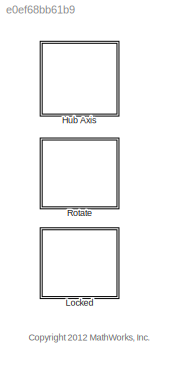
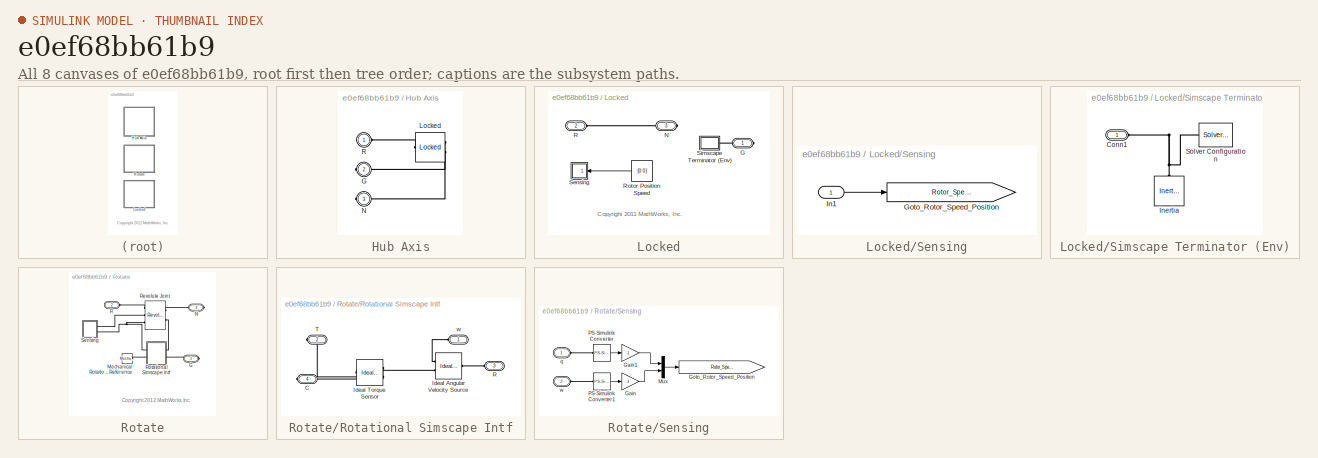
[diagram: thumbnail index - all 8 canvases of the model, root first then tree order]
MODEL slx_e0ef68bb61b9
KIND library
BLOCK [SubSystem] Hub Axis
  BlockChoice = Locked
  FunctionWithSeparateData = off
  MaskHideContents = off
  MemberBlocks = Locked,Rotate
  MinAlgLoopOccurrences = off
  Opaque = off
  Ports = [0, 0, 0, 0, 0, 1, 2]
  PropExecContextOutsideSubsystem = off
  RTWSystemCode = Auto
  RequestExecContextInheritance = off
  TemplateBlock = self
BLOCK [PMIOPort] Hub Axis/G
  Port = 2
  Side = Right
BLOCK [Reference] Hub Axis/Locked  REF=Hub_Axis_Lib/Locked
  FunctionWithSeparateData = off
  GeneratePreprocessorConditionals = off
  Ports = [0, 0, 0, 0, 0, 1, 2]
  ShowPortLabels = FromPortIcon
  SourceBlock = Hub_Axis_Lib/Locked
  SystemSampleTime = -1
BLOCK [PMIOPort] Hub Axis/N
  Port = 3
  Side = Right
BLOCK [PMIOPort] Hub Axis/R
  Port = 1
  Side = Left
BLOCK [SubSystem] Locked
  FunctionWithSeparateData = off
  MaskHideContents = off
  MinAlgLoopOccurrences = off
  Opaque = off
  Ports = [0, 0, 0, 0, 0, 1, 2]
  PropExecContextOutsideSubsystem = off
  RTWSystemCode = Auto
  RequestExecContextInheritance = off
BLOCK [PMIOPort] Locked/G
  Port = 1
  Side = Right
BLOCK [PMIOPort] Locked/N
  Port = 3
  Side = Right
BLOCK [PMIOPort] Locked/R
  Port = 2
  Side = Left
BLOCK [Constant] Locked/Rotor Position Speed
  Value = [0 0]
BLOCK [SubSystem] Locked/Sensing
  FunctionWithSeparateData = off
  MaskHideContents = off
  MinAlgLoopOccurrences = off
  Opaque = off
  Ports = [1]
  PropExecContextOutsideSubsystem = off
  RTWSystemCode = Auto
  RequestExecContextInheritance = off
BLOCK [Goto] Locked/Sensing/Goto_Rotor_Speed_Position
  GotoTag = Rotor_Speed_Position
  TagVisibility = global
BLOCK [Inport] Locked/Sensing/In1
  IconDisplay = Port number
BLOCK [SubSystem] Locked/Simscape Terminator (Env)
  FunctionWithSeparateData = off
  MaskHideContents = off
  MinAlgLoopOccurrences = off
  Opaque = off
  Ports = [0, 0, 0, 0, 0, 1]
  PropExecContextOutsideSubsystem = off
  RTWSystemCode = Auto
  RequestExecContextInheritance = off
BLOCK [PMIOPort] Locked/Simscape Terminator (Env)/Conn1
  Port = 1
  Side = Left
BLOCK [Reference] Locked/Simscape Terminator (Env)/Inertia  REF=fl_lib/Mechanical/Rotational Elements/Inertia
  ClassName = inertia
  ComponentPath = foundation.mechanical.rotational.inertia
  ComponentVariantNames = inertia
  ComponentVariants = foundation.mechanical.rotational.inertia
  LocalVarDescs = |t
  LocalVarLogging = 0
  LocalVarNames = |t
  Ports = [0, 0, 0, 0, 0, 1]
  SchemaVersion = 1
  SourceBlock = fl_lib/Mechanical/Rotational Elements/Inertia
  SourceFile = foundation.mechanical.rotational.inertia
  SourceType = Inertia
  inertia = 1.5e-3
  inertia_unit = kg*m^2
  initial_velocity = 0
  initial_velocity_unit = rad/s
  t_Log = off
BLOCK [Reference] Locked/Simscape Terminator (Env)/Solver Configuration  REF=nesl_utility/Solver
Configuration
  Accelerate = off
  DelaysMemoryBudget = 1024
  DoDC = off
  DoFixedCost = off
  EnableSwitchedLinearOptims = on
  FrequencyDomain = off
  Harmonics = []
  LeftPortType = input
  LinearAlgebra = Sparse
  LocalSolverChoice = NE_BACKWARD_EULER_ADVANCER
  LocalSolverSampleTime = .001
  MaxModeIter = 2
  MaxNonlinIter = 3
  PhysicalDomain = network_engine_domain
  Ports = [0, 0, 0, 0, 0, 0, 1]
  Profile = off
  ResidualTolerance = 1e-9
  RightPortType = generic
  SimulateNoise = off
  SourceBlock = nesl_utility/Solver\nConfiguration
  SourceType = Solver\nConfiguration
  SubClassName = solver
  Tones = []
  UseCCode = off
  UseLocalSampling = off
  UseLocalSolver = off
  UseNewInitialization = off
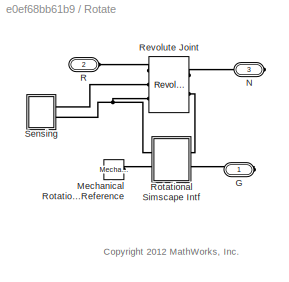
BLOCK [SubSystem] Rotate
  FunctionWithSeparateData = off
  MaskHideContents = off
  MinAlgLoopOccurrences = off
  Opaque = off
  Ports = [0, 0, 0, 0, 0, 1, 2]
  PropExecContextOutsideSubsystem = off
  RTWSystemCode = Auto
  RequestExecContextInheritance = off
BLOCK [PMIOPort] Rotate/G
  Port = 1
  Side = Right
BLOCK [Reference] Rotate/Mechanical Rotational Reference  REF=fl_lib/Mechanical/Rotational Elements/Mechanical
Rotational Reference
  ClassName = reference
  ComponentPath = foundation.mechanical.rotational.reference
  ComponentVariantNames = reference
  ComponentVariants = foundation.mechanical.rotational.reference
  LocalVarDescs = |t
  LocalVarLogging = 0
  LocalVarNames = |t
  Ports = [0, 0, 0, 0, 0, 1]
  SchemaVersion = 1
  SourceBlock = fl_lib/Mechanical/Rotational Elements/Mechanical\nRotational Reference
  SourceFile = foundation.mechanical.rotational.reference
  SourceType = Mechanical\nRotational Reference
  t_Log = off
BLOCK [PMIOPort] Rotate/N
  Port = 3
  Side = Right
BLOCK [PMIOPort] Rotate/R
  Port = 2
  Side = Left
BLOCK [Reference] Rotate/Revolute Joint  REF=sm_lib/Joints/Revolute Joint
  ActuationMode = TorqueForceActuation
  BlockFunction = simmechanics.library.joints.revolute_joint
  ClassName = RevoluteJoint
  ConstraintWrenchDir = FollowerOnBase
  ConstraintWrenchFrame = BaseFrame
  DampingCoefficient = 0
  DampingCoefficientUnits = N*m/(deg/s)
  EquilibriumPosition = 0
  EquilibriumPositionUnits = deg
  Ports = [0, 0, 0, 0, 0, 2, 3]
  PositionTargetPriority = High
  PositionTargetSpecify = on
  PositionTargetValue = 0
  PositionTargetValueUnits = deg
  SenseAcceleration = off
  SenseConstraintForceX = off
  SenseConstraintForceY = off
  SenseConstraintForceZ = off
  SenseConstraintTorqueX = off
  SenseConstraintTorqueY = off
  SenseConstraintTorqueZ = off
  SensePosition = on
  SenseTorqueForce = off
  SenseVelocity = on
  SourceBlock = sm_lib/Joints/Revolute Joint
  SourceType = Revolute Joint
  SpringStiffness = 0
  SpringStiffnessUnits = N*m/deg
  VelocityTargetPriority = High
  VelocityTargetSpecify = off
  VelocityTargetValue = 0
  VelocityTargetValueUnits = deg/s
BLOCK [SubSystem] Rotate/Rotational Simscape Intf
  FunctionWithSeparateData = off
  MaskHideContents = off
  MinAlgLoopOccurrences = off
  Opaque = off
  Ports = [0, 0, 0, 0, 0, 2, 2]
  PropExecContextOutsideSubsystem = off
  RTWSystemCode = Auto
  RequestExecContextInheritance = off
BLOCK [PMIOPort] Rotate/Rotational Simscape Intf/C
  Port = 4
  Side = Right
BLOCK [Reference] Rotate/Rotational Simscape Intf/Ideal Angular Velocity Source  REF=fl_lib/Mechanical/Mechanical Sources/Ideal Angular
Velocity Source
  ClassName = angular_velocity
  ComponentPath = foundation.mechanical.sources.angular_velocity
  ComponentVariantNames = angular_velocity
  ComponentVariants = foundation.mechanical.sources.angular_velocity
  LocalVarDescs = |w|t
  LocalVarLogging = [0 0]
  LocalVarNames = |w|t
  Ports = [0, 0, 0, 0, 0, 1, 2]
  SchemaVersion = 1
  SourceBlock = fl_lib/Mechanical/Mechanical Sources/Ideal Angular\nVelocity Source
  SourceFile = foundation.mechanical.sources.angular_velocity
  SourceType = Ideal Angular\nVelocity Source
  t_Log = off
  w_Log = off
BLOCK [Reference] Rotate/Rotational Simscape Intf/Ideal Torque Sensor  REF=fl_lib/Mechanical/Mechanical Sensors/Ideal Torque Sensor
  ClassName = torque
  ComponentPath = foundation.mechanical.sensors.torque
  ComponentVariantNames = torque
  ComponentVariants = foundation.mechanical.sensors.torque
  LocalVarDescs = |w|t
  LocalVarLogging = [0 0]
  LocalVarNames = |w|t
  Ports = [0, 0, 0, 0, 0, 1, 2]
  SchemaVersion = 1
  SourceBlock = fl_lib/Mechanical/Mechanical Sensors/Ideal Torque Sensor
  SourceFile = foundation.mechanical.sensors.torque
  SourceType = Ideal Torque Sensor
  t_Log = off
  w_Log = off
BLOCK [PMIOPort] Rotate/Rotational Simscape Intf/R
  Port = 3
  Side = Left
BLOCK [PMIOPort] Rotate/Rotational Simscape Intf/T
  Port = 2
  Side = Right
BLOCK [PMIOPort] Rotate/Rotational Simscape Intf/w
  Port = 1
  Side = Left
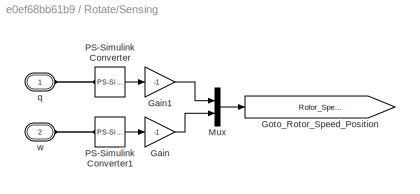
BLOCK [SubSystem] Rotate/Sensing
  FunctionWithSeparateData = off
  MaskHideContents = off
  MinAlgLoopOccurrences = off
  Opaque = off
  Ports = [0, 0, 0, 0, 0, 2]
  PropExecContextOutsideSubsystem = off
  RTWSystemCode = Auto
  RequestExecContextInheritance = off
BLOCK [Gain] Rotate/Sensing/Gain
  Gain = -1
  OutDataTypeStr = Inherit: Inherit via internal rule
  ParamDataTypeStr = Inherit: Inherit via internal rule
  SaturateOnIntegerOverflow = off
BLOCK [Gain] Rotate/Sensing/Gain1
  Gain = -1
  OutDataTypeStr = Inherit: Inherit via internal rule
  ParamDataTypeStr = Inherit: Inherit via internal rule
  SaturateOnIntegerOverflow = off
BLOCK [Goto] Rotate/Sensing/Goto_Rotor_Speed_Position
  GotoTag = Rotor_Speed_Position
  TagVisibility = global
BLOCK [Mux] Rotate/Sensing/Mux
  DisplayOption = bar
  Inputs = 2
  Ports = [2, 1]
BLOCK [Reference] Rotate/Sensing/PS-Simulink Converter  REF=nesl_utility/PS-Simulink
Converter
  AffineConversion = off
  Frequencies = []
  LeftPortType = input
  PhysicalDomain = network_engine_domain
  Ports = [0, 1, 0, 0, 0, 1]
  PseudoPeriodic = off
  RightPortType = output
  SourceBlock = nesl_utility/PS-Simulink\nConverter
  SourceType = PS-Simulink\nConverter
  SubClassName = ps_output
  Unit = deg
BLOCK [Reference] Rotate/Sensing/PS-Simulink Converter1  REF=nesl_utility/PS-Simulink
Converter
  AffineConversion = off
  Frequencies = []
  LeftPortType = input
  PhysicalDomain = network_engine_domain
  Ports = [0, 1, 0, 0, 0, 1]
  PseudoPeriodic = off
  RightPortType = output
  SourceBlock = nesl_utility/PS-Simulink\nConverter
  SourceType = PS-Simulink\nConverter
  SubClassName = ps_output
  Unit = rad/s
BLOCK [PMIOPort] Rotate/Sensing/q
  Port = 1
  Side = Left
  Tag = PMCPort
BLOCK [PMIOPort] Rotate/Sensing/w
  Port = 2
  Side = Left
  Tag = PMCPort
ANNOTATION (root): <copyright redacted>
ANNOTATION Locked: <copyright redacted>
ANNOTATION Rotate: <copyright redacted>
LINE Locked/Rotor Position Speed:1 -> Locked/Sensing:1
LINE Locked/Sensing/In1:1 -> Locked/Sensing/Goto_Rotor_Speed_Position:1
LINE Rotate/Sensing/Gain1:1 -> Rotate/Sensing/Mux:1
LINE Rotate/Sensing/Gain:1 -> Rotate/Sensing/Mux:2
LINE Rotate/Sensing/Mux:1 -> Rotate/Sensing/Goto_Rotor_Speed_Position:1
LINE Rotate/Sensing/PS-Simulink Converter1:1 -> Rotate/Sensing/Gain:1
LINE Rotate/Sensing/PS-Simulink Converter:1 -> Rotate/Sensing/Gain1:1
PLINE Hub Axis/G:RConn1 -- Hub Axis/Locked:RConn1
PLINE Hub Axis/Locked:LConn1 -- Hub Axis/R:RConn1
PLINE Hub Axis/Locked:RConn2 -- Hub Axis/N:RConn1
PLINE Locked/G:RConn1 -- Locked/Simscape Terminator (Env):LConn1
PLINE Locked/N:RConn1 -- Locked/R:RConn1
PNET net1: Locked/Simscape Terminator (Env)/Conn1:RConn1 -- Locked/Simscape Terminator (Env)/Inertia:LConn1 -- Locked/Simscape Terminator (Env)/Solver Configuration:RConn1
PLINE Rotate/G:RConn1 -- Rotate/Rotational Simscape Intf:RConn2
PLINE Rotate/Mechanical Rotational Reference:LConn1 -- Rotate/Rotational Simscape Intf:LConn2
PLINE Rotate/N:RConn1 -- Rotate/Revolute Joint:LConn1
PLINE Rotate/R:RConn1 -- Rotate/Revolute Joint:RConn1
PLINE Rotate/Revolute Joint:LConn2 -- Rotate/Rotational Simscape Intf:RConn1
PLINE Rotate/Revolute Joint:RConn2 -- Rotate/Sensing:LConn1
PNET net2: Rotate/Revolute Joint:RConn3 -- Rotate/Rotational Simscape Intf:LConn1 -- Rotate/Sensing:LConn2
PLINE Rotate/Rotational Simscape Intf/C:RConn1 -- Rotate/Rotational Simscape Intf/Ideal Torque Sensor:RConn1
PLINE Rotate/Rotational Simscape Intf/Ideal Angular Velocity Source:LConn1 -- Rotate/Rotational Simscape Intf/R:RConn1
PLINE Rotate/Rotational Simscape Intf/Ideal Angular Velocity Source:RConn1 -- Rotate/Rotational Simscape Intf/w:RConn1
PLINE Rotate/Rotational Simscape Intf/Ideal Angular Velocity Source:RConn2 -- Rotate/Rotational Simscape Intf/Ideal Torque Sensor:LConn1
PLINE Rotate/Rotational Simscape Intf/Ideal Torque Sensor:RConn2 -- Rotate/Rotational Simscape Intf/T:RConn1
PLINE Rotate/Sensing/PS-Simulink Converter1:LConn1 -- Rotate/Sensing/w:RConn1
PLINE Rotate/Sensing/PS-Simulink Converter:LConn1 -- Rotate/Sensing/q:RConn1
note: PNET lines group multi-terminal physical nets as a canonical sorted terminal list (undirected conserving connections); 2-terminal nets keep the pairwise PLINE form
